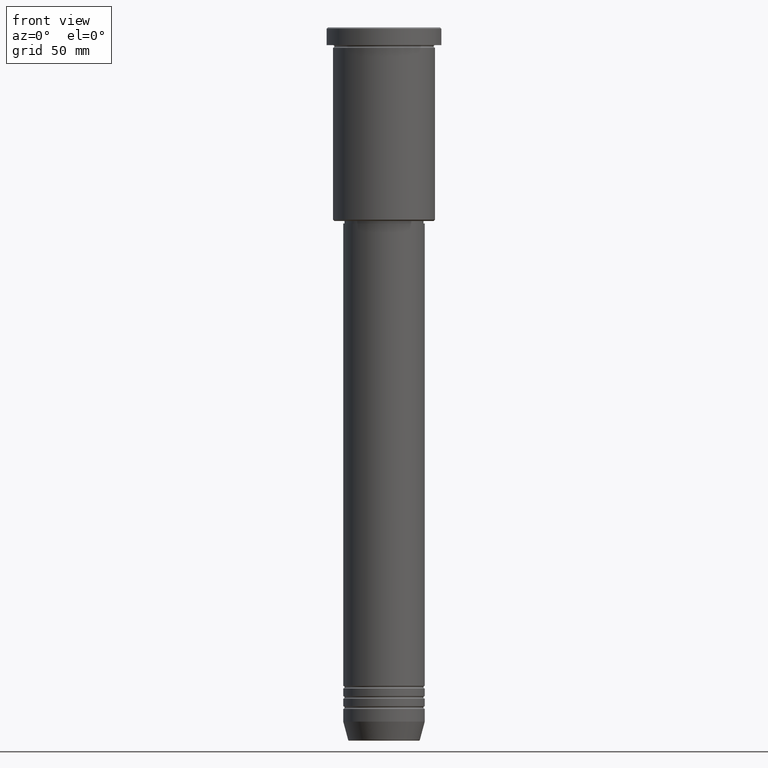
[diagram: clean part render]
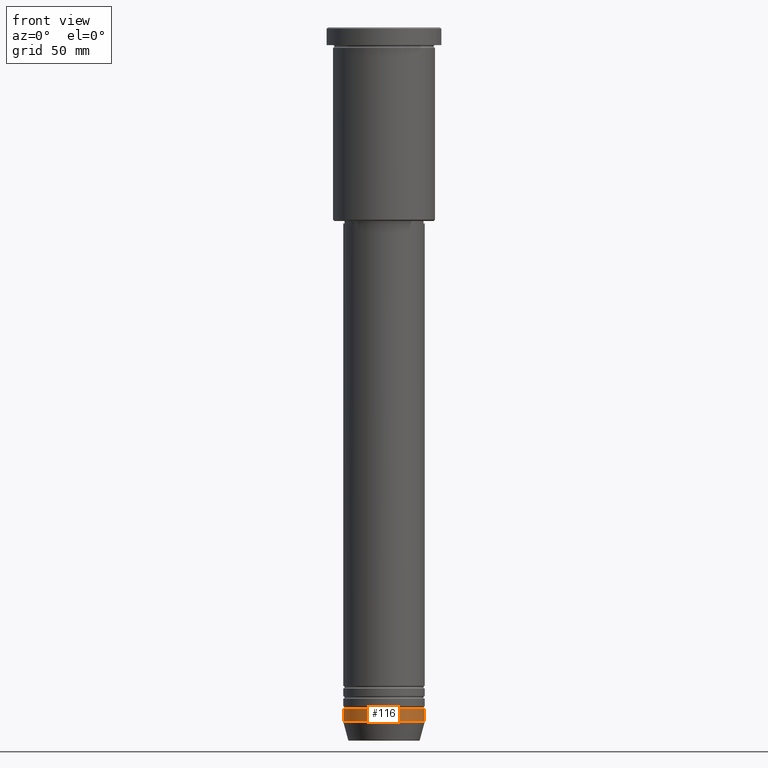
[diagram: same view with one face highlighted and labeled with its STEP entity id]
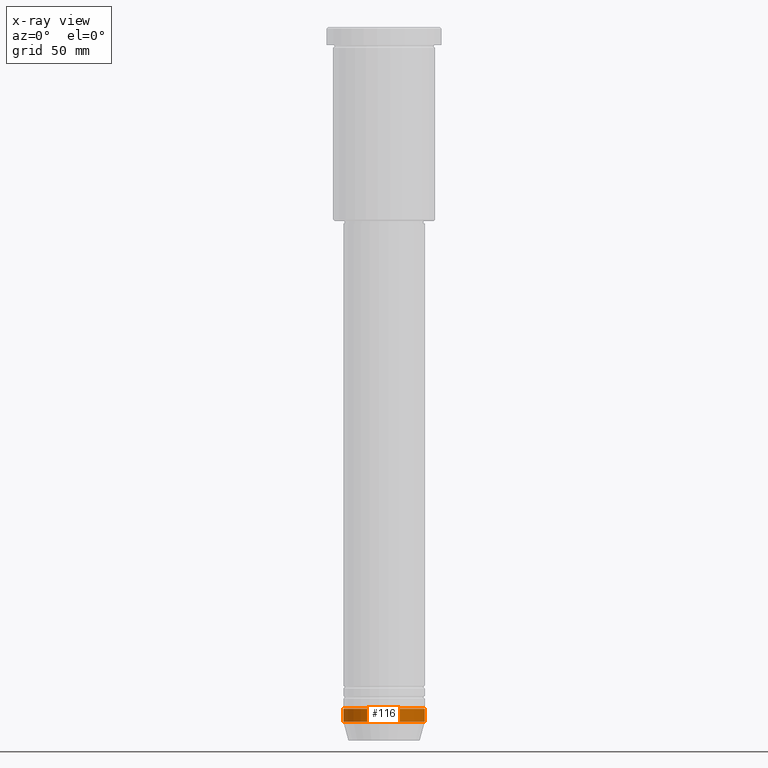
[diagram: x-ray of the same camera — body ghosted, the highlighted face saturated]
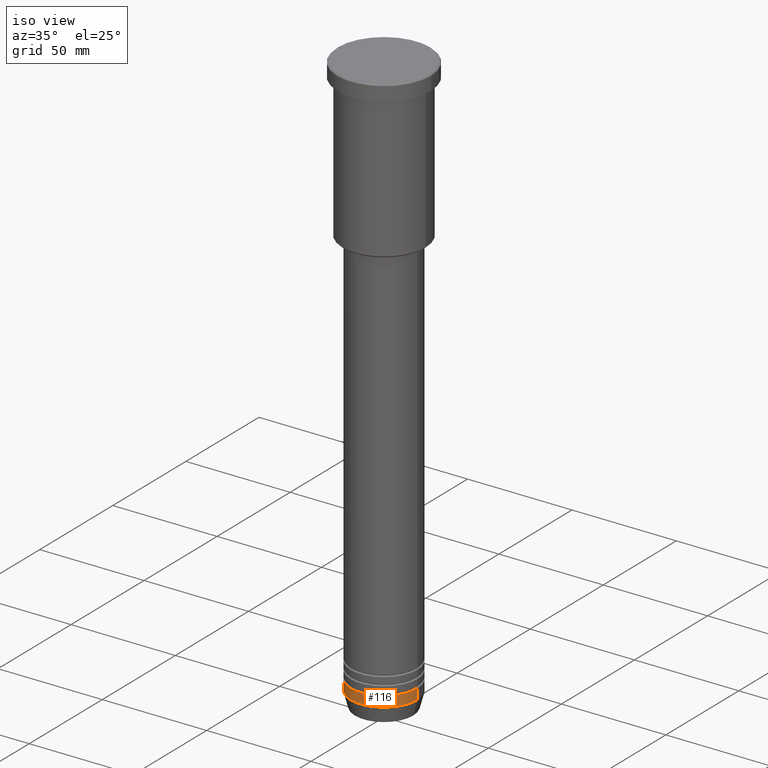
[diagram: same view with one face highlighted and labeled with its STEP entity id]
A machine part, front view. The second image highlights one B-rep face of the part: STEP entity #116.
The next image is the same camera in x-ray: the body ghosted, the highlighted face saturated — about 0% of this face is hidden behind the body in this view.
A second angle (iso view) of the same face is appended — the face is thin or edge-on in the first view.
In plain terms, the highlighted cylindrical surface (partial cylindrical patch) has radius 16 mm, axis along (-0, -0, 1).
Its self-contained STEP definition (entity closure, byte-faithful):
#18 = CARTESIAN_POINT ( 'NONE',  ( 0.000000000000000000, 0.000000000000000000, -267.5000000000000000 ) ) ;
#45 = CARTESIAN_POINT ( 'NONE',  ( 16.00000000000000000, 0.000000000000000000, 0.000000000000000000 ) ) ;
#46 = EDGE_CURVE ( 'NONE', #542, #87, #299, .T. ) ;
#51 = CARTESIAN_POINT ( 'NONE',  ( 16.00000000000000000, 0.000000000000000000, -272.5000000000000000 ) ) ;
#68 = AXIS2_PLACEMENT_3D ( 'NONE', #18, #387, #764 ) ;
#87 = VERTEX_POINT ( 'NONE', #51 ) ;
#116 = ADVANCED_FACE ( 'NONE', ( #388 ), #311, .T. ) ;
#147 = VECTOR ( 'NONE', #1132, 1000.000000000000000 ) ;
#156 = ORIENTED_EDGE ( 'NONE', *, *, #193, .F. ) ;
#193 = EDGE_CURVE ( 'NONE', #494, #328, #1000, .T. ) ;
#217 = DIRECTION ( 'NONE',  ( 1.000000000000000000, 0.000000000000000000, 0.000000000000000000 ) ) ;
#223 = DIRECTION ( 'NONE',  ( 1.000000000000000000, 0.000000000000000000, 0.000000000000000000 ) ) ;
#299 = CIRCLE ( 'NONE', #690, 16.00000000000000000 ) ;
#311 = CYLINDRICAL_SURFACE ( 'NONE', #1061, 16.00000000000000000 ) ;
#328 = VERTEX_POINT ( 'NONE', #1168 ) ;
#343 = ORIENTED_EDGE ( 'NONE', *, *, #408, .F. ) ;
#387 = DIRECTION ( 'NONE',  ( -0.000000000000000000, -0.000000000000000000, 1.000000000000000000 ) ) ;
#388 = FACE_OUTER_BOUND ( 'NONE', #1133, .T. ) ;
#392 = CARTESIAN_POINT ( 'NONE',  ( -16.00000000000000000, 1.959434878635765131E-15, 0.000000000000000000 ) ) ;
#408 = EDGE_CURVE ( 'NONE', #542, #494, #666, .T. ) ;
#473 = DIRECTION ( 'NONE',  ( -0.000000000000000000, -0.000000000000000000, 1.000000000000000000 ) ) ;
#494 = VERTEX_POINT ( 'NONE', #806 ) ;
#542 = VERTEX_POINT ( 'NONE', #902 ) ;
#653 = ORIENTED_EDGE ( 'NONE', *, *, #46, .T. ) ;
#666 = LINE ( 'NONE', #392, #755 ) ;
#690 = AXIS2_PLACEMENT_3D ( 'NONE', #782, #473, #217 ) ;
#755 = VECTOR ( 'NONE', #769, 1000.000000000000000 ) ;
#764 = DIRECTION ( 'NONE',  ( 1.000000000000000000, 0.000000000000000000, 0.000000000000000000 ) ) ;
#769 = DIRECTION ( 'NONE',  ( -0.000000000000000000, -0.000000000000000000, 1.000000000000000000 ) ) ;
#782 = CARTESIAN_POINT ( 'NONE',  ( 0.000000000000000000, 0.000000000000000000, -272.5000000000000000 ) ) ;
#798 = EDGE_CURVE ( 'NONE', #87, #328, #875, .T. ) ;
#806 = CARTESIAN_POINT ( 'NONE',  ( -16.00000000000000000, 1.959434878635765131E-15, -267.5000000000000000 ) ) ;
#875 = LINE ( 'NONE', #45, #147 ) ;
#902 = CARTESIAN_POINT ( 'NONE',  ( -16.00000000000000000, 1.959434878635765131E-15, -272.5000000000000000 ) ) ;
#940 = CARTESIAN_POINT ( 'NONE',  ( 0.000000000000000000, 0.000000000000000000, 0.000000000000000000 ) ) ;
#1000 = CIRCLE ( 'NONE', #68, 16.00000000000000000 ) ;
#1044 = DIRECTION ( 'NONE',  ( -0.000000000000000000, -0.000000000000000000, 1.000000000000000000 ) ) ;
#1061 = AXIS2_PLACEMENT_3D ( 'NONE', #940, #1044, #223 ) ;
#1099 = ORIENTED_EDGE ( 'NONE', *, *, #798, .T. ) ;
#1132 = DIRECTION ( 'NONE',  ( -0.000000000000000000, -0.000000000000000000, 1.000000000000000000 ) ) ;
#1133 = EDGE_LOOP ( 'NONE', ( #343, #653, #1099, #156 ) ) ;
#1168 = CARTESIAN_POINT ( 'NONE',  ( 16.00000000000000000, 0.000000000000000000, -267.5000000000000000 ) ) ;